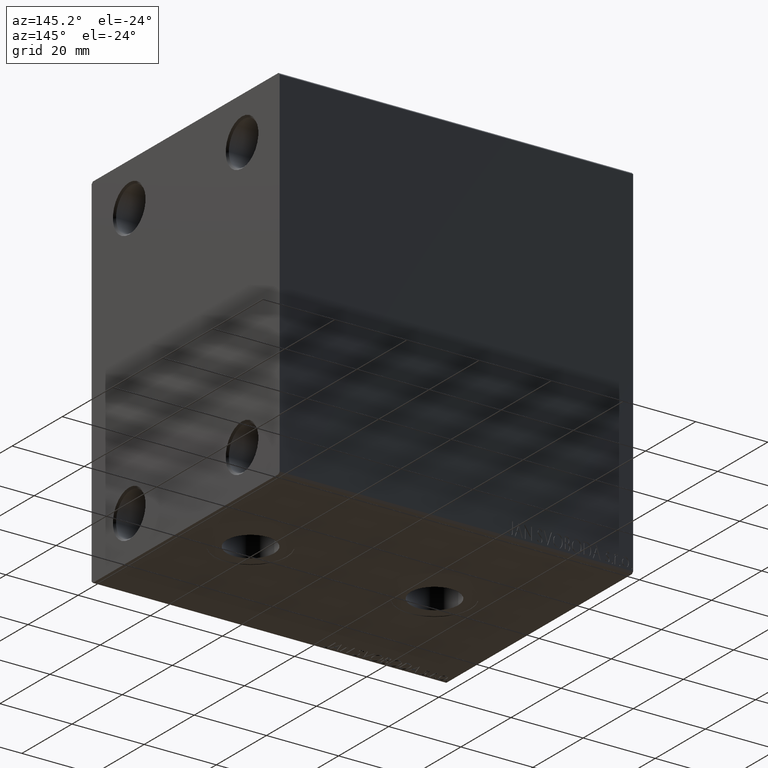
[diagram: clean part render]
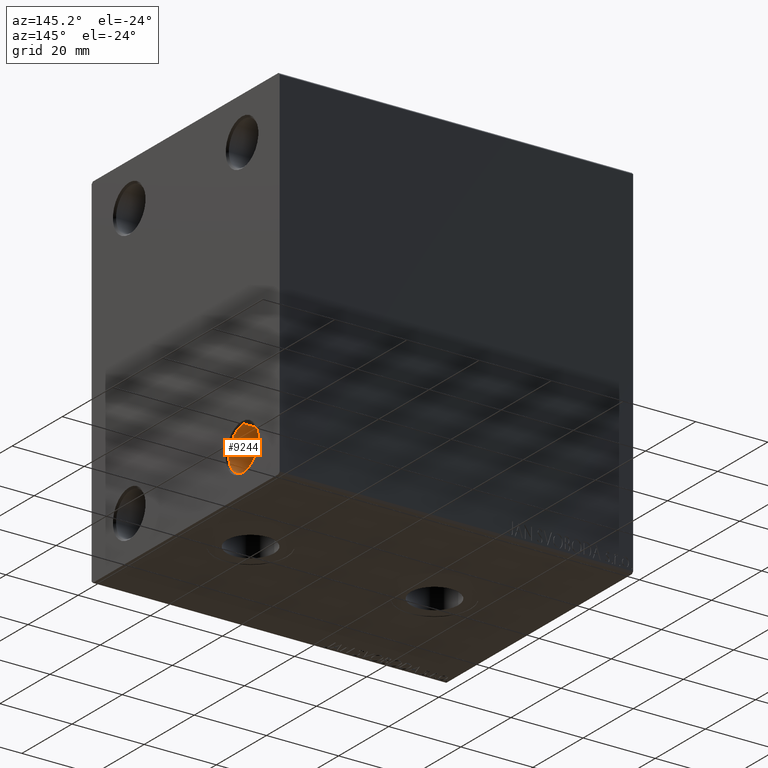
[diagram: same view with one face highlighted and labeled with its STEP entity id]
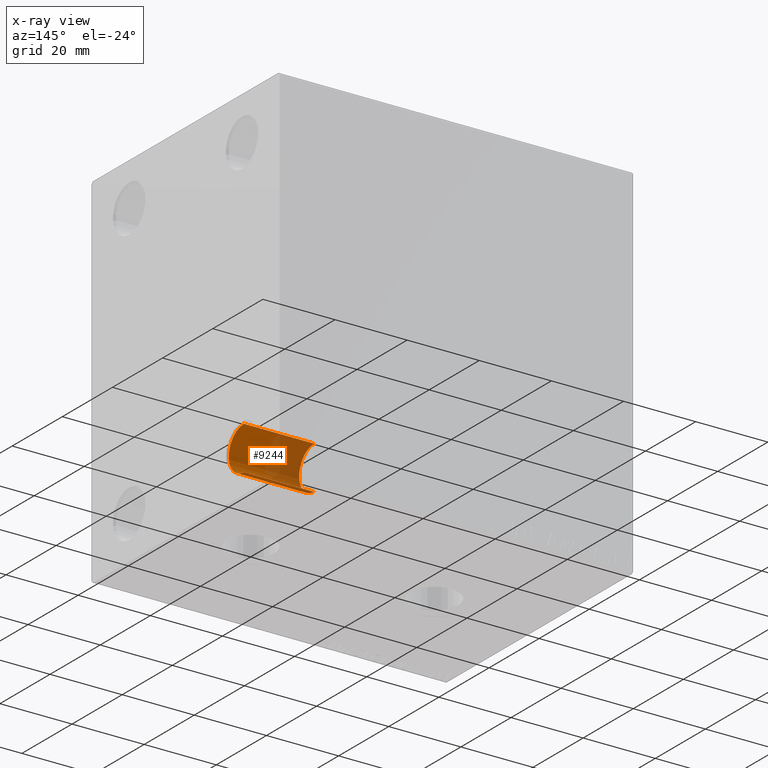
[diagram: x-ray of the same camera — body ghosted, the highlighted face saturated]
A machine part, auxiliary view. The second image highlights one B-rep face of the part: STEP entity #9244.
The next image is the same camera in x-ray: the body ghosted, the highlighted face saturated — about 45% of this face is hidden behind the body in this view.
In plain terms, the highlighted cylindrical surface (edge-blend (fillet) strip) has radius 6 mm, axis along (1, 0, 0).
Its self-contained STEP definition (entity closure, byte-faithful):
#2929 = CARTESIAN_POINT ( 'NONE',  ( 98.00000000000000000, 22.50000000000000000, -38.00000000000000711 ) ) ;
#5263 = LINE ( 'NONE', #36522, #8769 ) ;
#6603 = CARTESIAN_POINT ( 'NONE',  ( 78.00000000000000000, 22.50000000000000000, -44.00000000000000711 ) ) ;
#6964 = DIRECTION ( 'NONE',  ( -1.000000000000000000, 0.000000000000000000, 0.000000000000000000 ) ) ;
#7300 = EDGE_CURVE ( 'NONE', #15726, #13831, #32649, .T. ) ;
#8651 = CARTESIAN_POINT ( 'NONE',  ( 97.50000000000001421, 22.50000000000000000, -38.00000000000000711 ) ) ;
#8769 = VECTOR ( 'NONE', #12890, 1000.000000000000000 ) ;
#9244 = ADVANCED_FACE ( 'NONE', ( #37119 ), #33753, .F. ) ;
#9898 = DIRECTION ( 'NONE',  ( 0.000000000000000000, 0.000000000000000000, 1.000000000000000000 ) ) ;
#10325 = CARTESIAN_POINT ( 'NONE',  ( 97.50000000000001421, 22.50000000000000000, -44.00000000000000711 ) ) ;
#11108 = EDGE_CURVE ( 'NONE', #13285, #15726, #26831, .T. ) ;
#12614 = DIRECTION ( 'NONE',  ( 1.000000000000000000, -0.000000000000000000, -0.000000000000000000 ) ) ;
#12692 = DIRECTION ( 'NONE',  ( 0.000000000000000000, 0.000000000000000000, -1.000000000000000000 ) ) ;
#12890 = DIRECTION ( 'NONE',  ( 1.000000000000000000, -0.000000000000000000, -0.000000000000000000 ) ) ;
#13111 = AXIS2_PLACEMENT_3D ( 'NONE', #2929, #12614, #9898 ) ;
#13285 = VERTEX_POINT ( 'NONE', #6603 ) ;
#13520 = EDGE_CURVE ( 'NONE', #13285, #37525, #5263, .T. ) ;
#13831 = VERTEX_POINT ( 'NONE', #36253 ) ;
#15726 = VERTEX_POINT ( 'NONE', #35791 ) ;
#19341 = CARTESIAN_POINT ( 'NONE',  ( 98.00000000000000000, 22.50000000000000000, -32.00000000000000711 ) ) ;
#23615 = ORIENTED_EDGE ( 'NONE', *, *, #42449, .F. ) ;
#24750 = CARTESIAN_POINT ( 'NONE',  ( 78.00000000000000000, 22.50000000000000000, -38.00000000000000711 ) ) ;
#26831 = CIRCLE ( 'NONE', #43962, 5.999999999999998224 ) ;
#27669 = ORIENTED_EDGE ( 'NONE', *, *, #13520, .F. ) ;
#27671 = EDGE_LOOP ( 'NONE', ( #27669, #31711, #40393, #23615 ) ) ;
#27681 = DIRECTION ( 'NONE',  ( 0.000000000000000000, 0.000000000000000000, 1.000000000000000000 ) ) ;
#29931 = DIRECTION ( 'NONE',  ( 1.000000000000000000, -0.000000000000000000, -0.000000000000000000 ) ) ;
#31711 = ORIENTED_EDGE ( 'NONE', *, *, #11108, .T. ) ;
#32268 = AXIS2_PLACEMENT_3D ( 'NONE', #8651, #33180, #12692 ) ;
#32649 = LINE ( 'NONE', #19341, #41078 ) ;
#33180 = DIRECTION ( 'NONE',  ( -1.000000000000000000, 0.000000000000000000, 0.000000000000000000 ) ) ;
#33753 = CYLINDRICAL_SURFACE ( 'NONE', #13111, 5.999999999999998224 ) ;
#34390 = CIRCLE ( 'NONE', #32268, 5.999999999999998224 ) ;
#35791 = CARTESIAN_POINT ( 'NONE',  ( 78.00000000000000000, 22.50000000000000000, -32.00000000000000711 ) ) ;
#36253 = CARTESIAN_POINT ( 'NONE',  ( 97.50000000000001421, 22.50000000000000000, -32.00000000000000711 ) ) ;
#36522 = CARTESIAN_POINT ( 'NONE',  ( 98.00000000000000000, 22.50000000000000000, -44.00000000000000711 ) ) ;
#37119 = FACE_OUTER_BOUND ( 'NONE', #27671, .T. ) ;
#37525 = VERTEX_POINT ( 'NONE', #10325 ) ;
#40393 = ORIENTED_EDGE ( 'NONE', *, *, #7300, .T. ) ;
#41078 = VECTOR ( 'NONE', #29931, 1000.000000000000000 ) ;
#42449 = EDGE_CURVE ( 'NONE', #37525, #13831, #34390, .T. ) ;
#43962 = AXIS2_PLACEMENT_3D ( 'NONE', #24750, #6964, #27681 ) ;